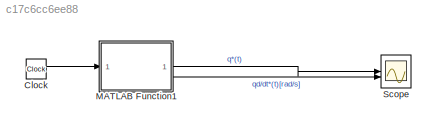
MODEL slx_c17c6cc6ee88
KIND model
CONFIG AbsTol = auto
CONFIG EnableMultiTasking = off
CONFIG FixedStep = auto
CONFIG MaxStep = 1e-5
CONFIG MinStep = auto
CONFIG RelTol = 1e-3
CONFIG SampleTimeConstraint = Unconstrained
CONFIG SolverName = VariableStepAuto
CONFIG StartTime = 0.0
CONFIG StopTime = 16
BLOCK [Clock] Clock
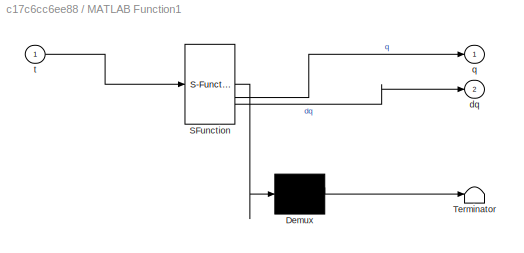
BLOCK [SubSystem] MATLAB Function1
  ErrorFcn = Stateflow.Translate.translate
  PermitHierarchicalResolution = ExplicitOnly
  SFBlockType = MATLAB Function
  TreatAsAtomicUnit = on
BLOCK [Demux] MATLAB Function1/ Demux 
  Outputs = 1
BLOCK [S-Function] MATLAB Function1/ SFunction 
  EnableBusSupport = on
  FunctionName = sf_sfun
  PortCounts = [1 3]
  SFcnIsStateOwnerBlock = off
  SFunctionDeploymentMode = off
  Tag = Stateflow S-Function 1
BLOCK [Terminator] MATLAB Function1/ Terminator 
BLOCK [Outport] MATLAB Function1/dq
  Port = 2
BLOCK [Outport] MATLAB Function1/q
BLOCK [Inport] MATLAB Function1/t
BLOCK [Scope] Scope
  Floating = off
  NumInputPorts = 2
  ScopeSpecificationString = Simulink.scopes.TimeScopeBlockCfg('CurrentConfiguration', extmgr.ConfigurationSet(extmgr.Configuration('Core','General UI',true),extmgr.Configuration('Core','Source UI',true),extmgr.Configuration('Sources','WiredSimulink',true),extmgr.Configuration('Visuals','Time Domain',true,'SerializedDisplays',{struct('MinYLimReal','-0.79325','MaxYLimReal','7.13927','YLabelReal','','MinYLimMag','0.00000','MaxY...<+2019ch>
LINE Clock:1 -> MATLAB Function1:1
LINE MATLAB Function1:1 -> Scope:1
LINE MATLAB Function1:2 -> Scope:2
CHART MATLAB Function1 states=1 transitions=1
  STATE_LABEL 'eML_blk_kernel()'
  STATE_LABEL 'SCRIPT:\nfunction [q, dq] = fcn(t)\n    % Salidas:\n    % q  -> Consigna de posición [rad]\n    % dq -> Consigna de velocidad [rad/s]\n    \n    % Constantes\n    max_pos = 2 * pi;       % Posición máxima [rad]\n    ramp_time = 0.1;       % Tiempo de rampa [s]\n    plateau_time = 5;       % Duración de velocidad constante [s]\n    total_time = 2 * plateau_time + 2 * ramp_time; % Tiempo total [s]\n    \n    % ...<+2076ch>'
CHART  states=0 transitions=0
